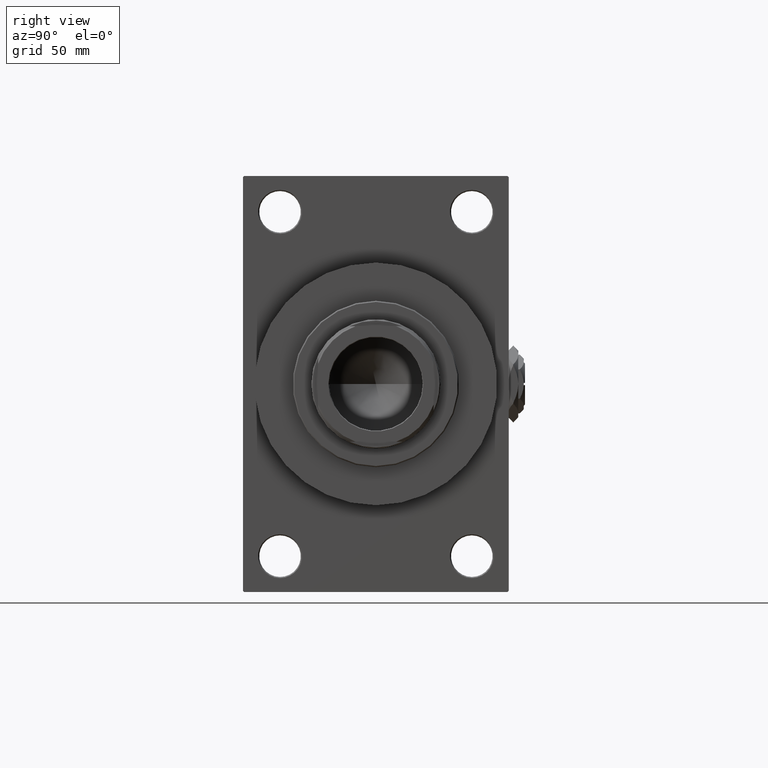
[diagram: clean part render]
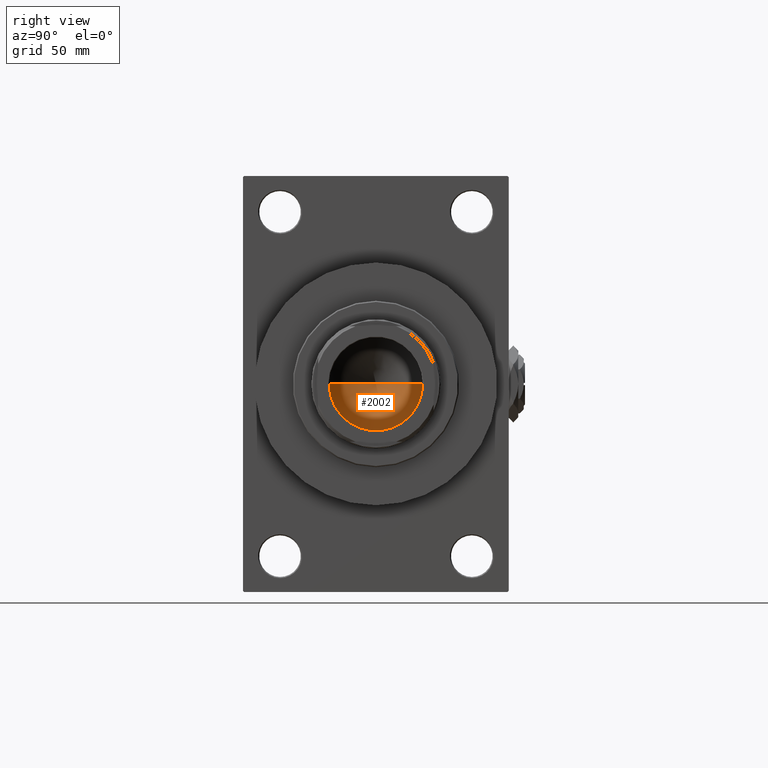
[diagram: same view with one face highlighted and labeled with its STEP entity id]
A machine part, right view. The second image highlights one B-rep face of the part: STEP entity #2002.
In plain terms, the highlighted conical surface has half-angle 59 deg.
Its self-contained STEP definition (entity closure, byte-faithful):
#2002 = ADVANCED_FACE ( 'NONE', ( #21164 ), #37003, .F. ) ;
#3095 = CARTESIAN_POINT ( 'NONE',  ( -1.844323935812429270E-14, 0.000000000000000000, 92.83257246469190704 ) ) ;
#6958 = VECTOR ( 'NONE', #27471, 1000.000000000000000 ) ;
#11313 = CARTESIAN_POINT ( 'NONE',  ( 20.24999999999998934, 0.000000000000000000, 105.0000000000000142 ) ) ;
#12401 = VECTOR ( 'NONE', #41825, 1000.000000000000000 ) ;
#13904 = DIRECTION ( 'NONE',  ( -0.000000000000000000, -0.000000000000000000, 1.000000000000000000 ) ) ;
#17887 = CIRCLE ( 'NONE', #45843, 20.24999999999998934 ) ;
#19025 = CARTESIAN_POINT ( 'NONE',  ( -20.24999999999998934, 2.479909768273389117E-15, 105.0000000000000142 ) ) ;
#19409 = AXIS2_PLACEMENT_3D ( 'NONE', #48670, #13904, #48913 ) ;
#21164 = FACE_OUTER_BOUND ( 'NONE', #38265, .T. ) ;
#22585 = LINE ( 'NONE', #11313, #12401 ) ;
#22880 = ORIENTED_EDGE ( 'NONE', *, *, #31320, .T. ) ;
#24362 = CARTESIAN_POINT ( 'NONE',  ( 0.000000000000000000, 0.000000000000000000, 105.0000000000000142 ) ) ;
#25657 = ORIENTED_EDGE ( 'NONE', *, *, #38935, .F. ) ;
#27471 = DIRECTION ( 'NONE',  ( -0.8571673007021120005, 1.049727191138618326E-16, 0.5150380749100547106 ) ) ;
#27922 = EDGE_CURVE ( 'NONE', #29971, #46393, #17887, .T. ) ;
#28716 = ORIENTED_EDGE ( 'NONE', *, *, #27922, .T. ) ;
#29971 = VERTEX_POINT ( 'NONE', #37247 ) ;
#30945 = DIRECTION ( 'NONE',  ( 1.000000000000000000, 0.000000000000000000, 0.000000000000000000 ) ) ;
#30991 = LINE ( 'NONE', #39216, #6958 ) ;
#31320 = EDGE_CURVE ( 'NONE', #41684, #29971, #22585, .T. ) ;
#37003 = CONICAL_SURFACE ( 'NONE', #19409, 20.24999999999998934, 1.029744258676653867 ) ;
#37247 = CARTESIAN_POINT ( 'NONE',  ( 20.24999999999998934, 0.000000000000000000, 105.0000000000000142 ) ) ;
#38265 = EDGE_LOOP ( 'NONE', ( #25657, #22880, #28716 ) ) ;
#38935 = EDGE_CURVE ( 'NONE', #41684, #46393, #30991, .T. ) ;
#39216 = CARTESIAN_POINT ( 'NONE',  ( -20.24999999999998934, 2.479909768273389117E-15, 105.0000000000000142 ) ) ;
#41684 = VERTEX_POINT ( 'NONE', #3095 ) ;
#41825 = DIRECTION ( 'NONE',  ( 0.8571673007021120005, 0.000000000000000000, 0.5150380749100547106 ) ) ;
#43355 = DIRECTION ( 'NONE',  ( -0.000000000000000000, -0.000000000000000000, 1.000000000000000000 ) ) ;
#45843 = AXIS2_PLACEMENT_3D ( 'NONE', #24362, #43355, #30945 ) ;
#46393 = VERTEX_POINT ( 'NONE', #19025 ) ;
#48670 = CARTESIAN_POINT ( 'NONE',  ( 0.000000000000000000, 0.000000000000000000, 105.0000000000000142 ) ) ;
#48913 = DIRECTION ( 'NONE',  ( 1.000000000000000000, 0.000000000000000000, 0.000000000000000000 ) ) ;